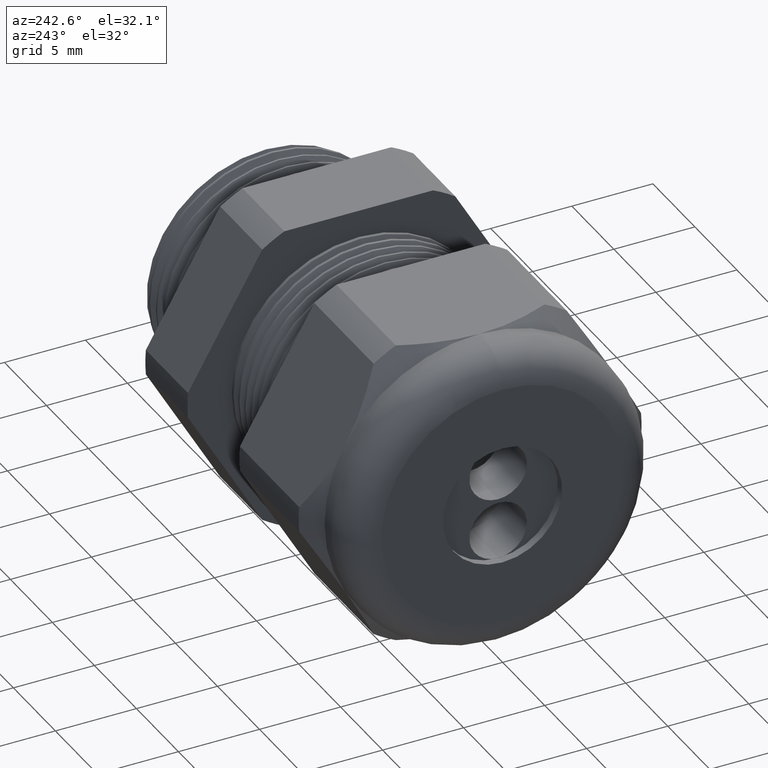
[diagram: clean part render]
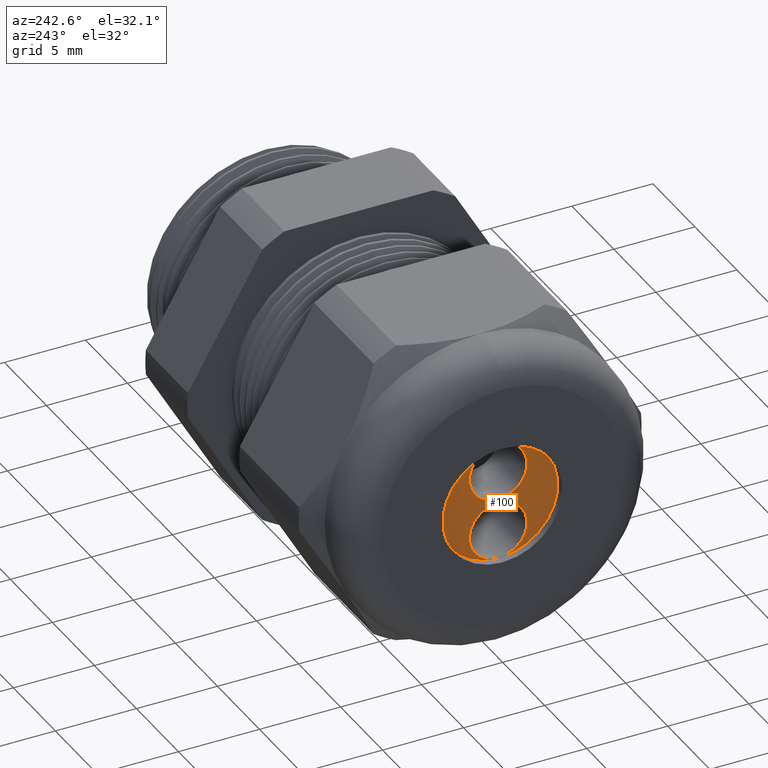
[diagram: same view with one face highlighted and labeled with its STEP entity id]
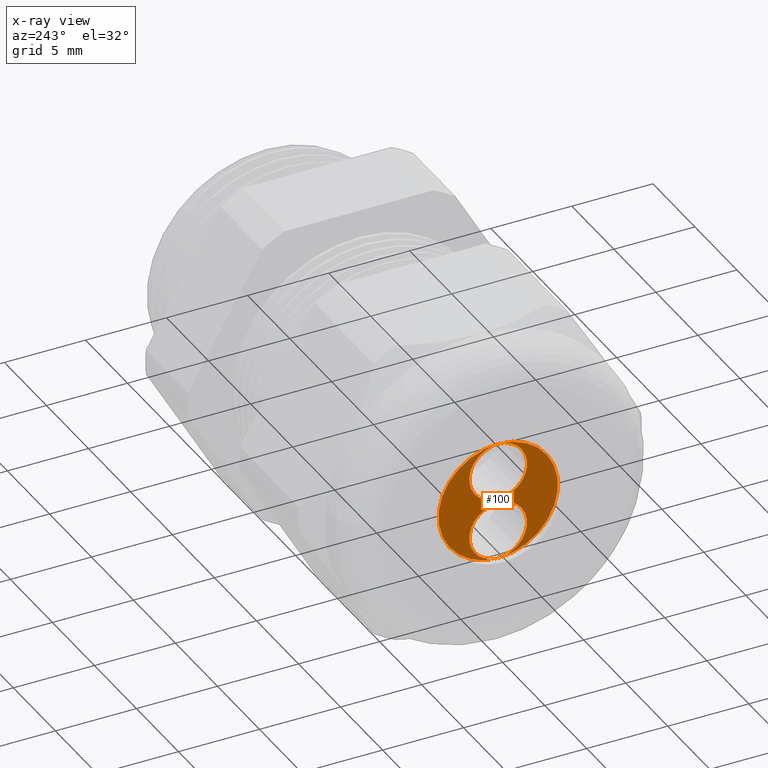
[diagram: x-ray of the same camera — body ghosted, the highlighted face saturated]
A machine part, auxiliary view. The second image highlights one B-rep face of the part: STEP entity #100.
The next image is the same camera in x-ray: the body ghosted, the highlighted face saturated — about 0% of this face is hidden behind the body in this view.
In plain terms, the highlighted planar face has unit normal (-1, 0, 0).
Its self-contained STEP definition (entity closure, byte-faithful):
#75 = VERTEX_POINT ( 'NONE', #1168 ) ;
#77 = EDGE_CURVE ( 'NONE', #75, #78, #1167, .T. ) ;
#78 = VERTEX_POINT ( 'NONE', #1162 ) ;
#84 = EDGE_CURVE ( 'NONE', #85, #86, #1155, .T. ) ;
#85 = VERTEX_POINT ( 'NONE', #1146 ) ;
#86 = VERTEX_POINT ( 'NONE', #1145 ) ;
#95 = ORIENTED_EDGE ( 'NONE', *, *, #96, .F. ) ;
#96 = EDGE_CURVE ( 'NONE', #78, #75, #1194, .T. ) ;
#97 = ORIENTED_EDGE ( 'NONE', *, *, #77, .F. ) ;
#98 = EDGE_LOOP ( 'NONE', ( #112, #113 ) ) ;
#100 = ADVANCED_FACE ( 'NONE', ( #1189, #1188, #1187 ), #1186, .T. ) ;
#101 = ORIENTED_EDGE ( 'NONE', *, *, #102, .F. ) ;
#102 = EDGE_CURVE ( 'NONE', #131, #128, #1181, .T. ) ;
#103 = ORIENTED_EDGE ( 'NONE', *, *, #130, .F. ) ;
#104 = EDGE_LOOP ( 'NONE', ( #95, #97 ) ) ;
#109 = EDGE_CURVE ( 'NONE', #86, #85, #1169, .T. ) ;
#111 = EDGE_LOOP ( 'NONE', ( #101, #103 ) ) ;
#112 = ORIENTED_EDGE ( 'NONE', *, *, #109, .T. ) ;
#113 = ORIENTED_EDGE ( 'NONE', *, *, #84, .T. ) ;
#128 = VERTEX_POINT ( 'NONE', #1209 ) ;
#130 = EDGE_CURVE ( 'NONE', #128, #131, #1208, .T. ) ;
#131 = VERTEX_POINT ( 'NONE', #1266 ) ;
#1145 = CARTESIAN_POINT ( 'NONE',  ( -1.159999999999999700, 0.0000000000000000000, 0.1449999999999999600 ) ) ;
#1146 = CARTESIAN_POINT ( 'NONE',  ( -1.159999999999999700, 1.775737858763661600E-017, -0.1449999999999999600 ) ) ;
#1147 = DIRECTION ( 'NONE',  ( 0.0000000000000000000, 0.0000000000000000000, 1.000000000000000000 ) ) ;
#1148 = DIRECTION ( 'NONE',  ( -1.000000000000000000, 0.0000000000000000000, 0.0000000000000000000 ) ) ;
#1149 = CARTESIAN_POINT ( 'NONE',  ( -1.159999999999999700, 0.0000000000000000000, 0.0000000000000000000 ) ) ;
#1150 = AXIS2_PLACEMENT_3D ( 'NONE', #1149, #1148, #1147 ) ;
#1155 = CIRCLE ( 'NONE', #1150, 0.1449999999999999600 ) ;
#1162 = CARTESIAN_POINT ( 'NONE',  ( -1.159999999999999700, 0.0000000000000000000, -0.004719999999999943000 ) ) ;
#1163 = DIRECTION ( 'NONE',  ( 0.0000000000000000000, 0.0000000000000000000, 1.000000000000000000 ) ) ;
#1164 = DIRECTION ( 'NONE',  ( -1.000000000000000000, 0.0000000000000000000, 0.0000000000000000000 ) ) ;
#1165 = CARTESIAN_POINT ( 'NONE',  ( -1.159999999999999700, 0.0000000000000000000, -0.07471999999999995300 ) ) ;
#1166 = AXIS2_PLACEMENT_3D ( 'NONE', #1165, #1164, #1163 ) ;
#1167 = CIRCLE ( 'NONE', #1166, 0.07000000000000000700 ) ;
#1168 = CARTESIAN_POINT ( 'NONE',  ( -1.159999999999999700, 8.572527594031472000E-018, -0.1447199999999999600 ) ) ;
#1169 = CIRCLE ( 'NONE', #1234, 0.1449999999999999600 ) ;
#1174 = CARTESIAN_POINT ( 'NONE',  ( -1.159999999999999700, 0.0000000000000000000, 0.0000000000000000000 ) ) ;
#1177 = DIRECTION ( 'NONE',  ( 0.0000000000000000000, -6.982966722218763300E-015, -1.000000000000000000 ) ) ;
#1178 = DIRECTION ( 'NONE',  ( -1.000000000000000000, 0.0000000000000000000, 0.0000000000000000000 ) ) ;
#1179 = CARTESIAN_POINT ( 'NONE',  ( -1.159999999999999700, 5.217672734841857200E-016, 0.07471999999999995300 ) ) ;
#1180 = AXIS2_PLACEMENT_3D ( 'NONE', #1179, #1178, #1177 ) ;
#1181 = CIRCLE ( 'NONE', #1180, 0.07000000000000000700 ) ;
#1182 = DIRECTION ( 'NONE',  ( 0.0000000000000000000, 0.0000000000000000000, 1.000000000000000000 ) ) ;
#1183 = DIRECTION ( 'NONE',  ( -1.000000000000000000, 0.0000000000000000000, 0.0000000000000000000 ) ) ;
#1184 = CARTESIAN_POINT ( 'NONE',  ( -1.159999999999999700, 0.0000000000000000000, 0.0000000000000000000 ) ) ;
#1185 = AXIS2_PLACEMENT_3D ( 'NONE', #1184, #1183, #1182 ) ;
#1186 = PLANE ( 'NONE',  #1185 ) ;
#1187 = FACE_OUTER_BOUND ( 'NONE', #98, .T. ) ;
#1188 = FACE_BOUND ( 'NONE', #104, .T. ) ;
#1189 = FACE_BOUND ( 'NONE', #111, .T. ) ;
#1190 = DIRECTION ( 'NONE',  ( 0.0000000000000000000, 0.0000000000000000000, 1.000000000000000000 ) ) ;
#1191 = DIRECTION ( 'NONE',  ( -1.000000000000000000, 0.0000000000000000000, 0.0000000000000000000 ) ) ;
#1192 = CARTESIAN_POINT ( 'NONE',  ( -1.159999999999999700, 0.0000000000000000000, -0.07471999999999995300 ) ) ;
#1193 = AXIS2_PLACEMENT_3D ( 'NONE', #1192, #1191, #1190 ) ;
#1194 = CIRCLE ( 'NONE', #1193, 0.07000000000000000700 ) ;
#1205 = DIRECTION ( 'NONE',  ( -1.000000000000000000, 0.0000000000000000000, 0.0000000000000000000 ) ) ;
#1206 = CARTESIAN_POINT ( 'NONE',  ( -1.159999999999999700, 5.217672734841857200E-016, 0.07471999999999995300 ) ) ;
#1207 = AXIS2_PLACEMENT_3D ( 'NONE', #1206, #1205, #1267 ) ;
#1208 = CIRCLE ( 'NONE', #1207, 0.07000000000000000700 ) ;
#1209 = CARTESIAN_POINT ( 'NONE',  ( -1.159999999999999700, 5.303398010782171500E-016, 0.004719999999999943000 ) ) ;
#1232 = DIRECTION ( 'NONE',  ( 0.0000000000000000000, 0.0000000000000000000, 1.000000000000000000 ) ) ;
#1233 = DIRECTION ( 'NONE',  ( -1.000000000000000000, 0.0000000000000000000, 0.0000000000000000000 ) ) ;
#1234 = AXIS2_PLACEMENT_3D ( 'NONE', #1174, #1233, #1232 ) ;
#1266 = CARTESIAN_POINT ( 'NONE',  ( -1.159999999999999700, 5.217672734841857200E-016, 0.1447199999999999600 ) ) ;
#1267 = DIRECTION ( 'NONE',  ( 0.0000000000000000000, -6.982966722218763300E-015, -1.000000000000000000 ) ) ;